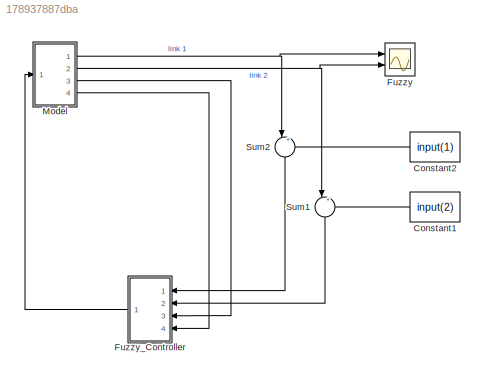
MODEL slx_178937887dba
KIND model
CONFIG AbsTol = auto
CONFIG EnableMultiTasking = off
CONFIG FixedStep = auto
CONFIG MaxStep = auto
CONFIG MinStep = auto
CONFIG RelTol = 1e-3
CONFIG SampleTimeConstraint = Unconstrained
CONFIG SolverName = VariableStepAuto
CONFIG StartTime = 0.0
CONFIG StopTime = 10
BLOCK [Constant] Constant1
  NameLocation = top
  Value = input(2)
BLOCK [Constant] Constant2
  NameLocation = top
  Value = input(1)
BLOCK [Scope] Fuzzy
  Floating = off
  NumInputPorts = 2
  Ports = [2]
  ScopeSpecificationString = Simulink.scopes.TimeScopeBlockCfg('CurrentConfiguration', extmgr.ConfigurationSet(extmgr.Configuration('Core','General UI',true),extmgr.Configuration('Core','Source UI',true),extmgr.Configuration('Sources','WiredSimulink',true,'DataLoggingSaveFormat','StructureWithTime','DataLoggingLimitDataPoints',true,'DataLoggingDecimation','1','DataLoggingDecimateData',true),extmgr.Configuration('Visuals','Tim...<+1774ch>
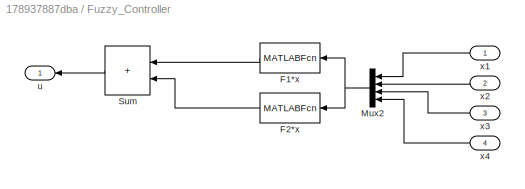
BLOCK [SubSystem] Fuzzy_Controller
  Ports = [4, 1]
  RequestExecContextInheritance = off
BLOCK [MATLABFcn] Fuzzy_Controller/F1*x
  MATLABFcn = -sind(u(1))/u(1)*(F1*u)
  Ports = [1, 1]
BLOCK [MATLABFcn] Fuzzy_Controller/F2*x
  MATLABFcn = -(u(1)-sind(u(1)))/u(1)*(F2*u)
  Ports = [1, 1]
BLOCK [Mux] Fuzzy_Controller/Mux2
  DisplayOption = bar
  Ports = [4, 1]
BLOCK [Sum] Fuzzy_Controller/Sum
  IconShape = rectangular
  Ports = [2, 1]
BLOCK [Outport] Fuzzy_Controller/u
BLOCK [Inport] Fuzzy_Controller/x1
BLOCK [Inport] Fuzzy_Controller/x2
  Port = 2
BLOCK [Inport] Fuzzy_Controller/x3
  Port = 3
BLOCK [Inport] Fuzzy_Controller/x4
  Port = 4
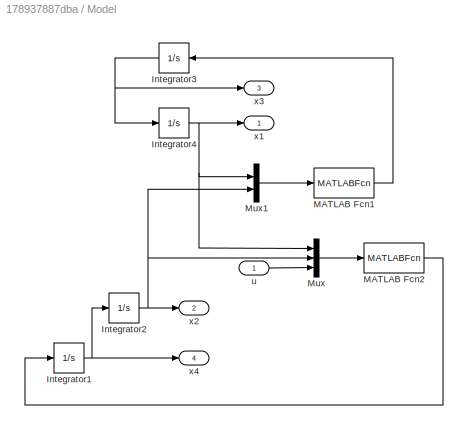
BLOCK [SubSystem] Model
  Ports = [1, 4]
  RequestExecContextInheritance = off
BLOCK [Integrator] Model/Integrator1
  Ports = [1, 1]
BLOCK [Integrator] Model/Integrator2
  InitialCondition = Initial_angle2
  Ports = [1, 1]
BLOCK [Integrator] Model/Integrator3
  NameLocation = top
  Ports = [1, 1]
BLOCK [Integrator] Model/Integrator4
  InitialCondition = Initial_angle1
  Ports = [1, 1]
BLOCK [MATLABFcn] Model/MATLAB Fcn1
  MATLABFcn = (k*(u(2)-u(1))-m*g*L*sin(u(1)))/I
  Ports = [1, 1]
BLOCK [MATLABFcn] Model/MATLAB Fcn2
  MATLABFcn = (u(3)-k*(u(2)-u(1)))/J
  Ports = [1, 1]
BLOCK [Mux] Model/Mux
  DisplayOption = bar
  Inputs = 3
  Ports = [3, 1]
BLOCK [Mux] Model/Mux1
  DisplayOption = bar
  Inputs = 2
  Ports = [2, 1]
BLOCK [Inport] Model/u
BLOCK [Outport] Model/x1
BLOCK [Outport] Model/x2
  Port = 2
BLOCK [Outport] Model/x3
  Port = 3
BLOCK [Outport] Model/x4
  Port = 4
BLOCK [Sum] Sum1
  Inputs = |+-
  NameLocation = left
  Ports = [2, 1]
BLOCK [Sum] Sum2
  Inputs = |+-
  NameLocation = left
  Ports = [2, 1]
LINE Constant1:1 -> Sum1:2
LINE Constant2:1 -> Sum2:2
LINE Fuzzy_Controller/F1*x:1 -> Fuzzy_Controller/Sum:1
LINE Fuzzy_Controller/F2*x:1 -> Fuzzy_Controller/Sum:2
NET Fuzzy_Controller/Mux2:1 -> Fuzzy_Controller/F1*x:1, Fuzzy_Controller/F2*x:1
LINE Fuzzy_Controller/Sum:1 -> Fuzzy_Controller/u:1
LINE Fuzzy_Controller/x1:1 -> Fuzzy_Controller/Mux2:1
LINE Fuzzy_Controller/x2:1 -> Fuzzy_Controller/Mux2:2
LINE Fuzzy_Controller/x3:1 -> Fuzzy_Controller/Mux2:3
LINE Fuzzy_Controller/x4:1 -> Fuzzy_Controller/Mux2:4
LINE Fuzzy_Controller:1 -> Model:1
NET Model/Integrator1:1 -> Model/Integrator2:1, Model/x4:1
NET Model/Integrator2:1 -> Model/Mux1:2, Model/Mux:2, Model/x2:1
NET Model/Integrator3:1 -> Model/Integrator4:1, Model/x3:1
NET Model/Integrator4:1 -> Model/Mux1:1, Model/Mux:1, Model/x1:1
LINE Model/MATLAB Fcn1:1 -> Model/Integrator3:1
LINE Model/MATLAB Fcn2:1 -> Model/Integrator1:1
LINE Model/Mux1:1 -> Model/MATLAB Fcn1:1
LINE Model/Mux:1 -> Model/MATLAB Fcn2:1
LINE Model/u:1 -> Model/Mux:3
NET Model:1 -> Fuzzy:1, Sum2:1
NET Model:2 -> Fuzzy:2, Sum1:1
LINE Model:3 -> Fuzzy_Controller:3
LINE Model:4 -> Fuzzy_Controller:4
LINE Sum1:1 -> Fuzzy_Controller:2
LINE Sum2:1 -> Fuzzy_Controller:1
note: NET lines group one-source signal fan-out (src -> all destinations, sorted); 1:1 wires keep LINE
